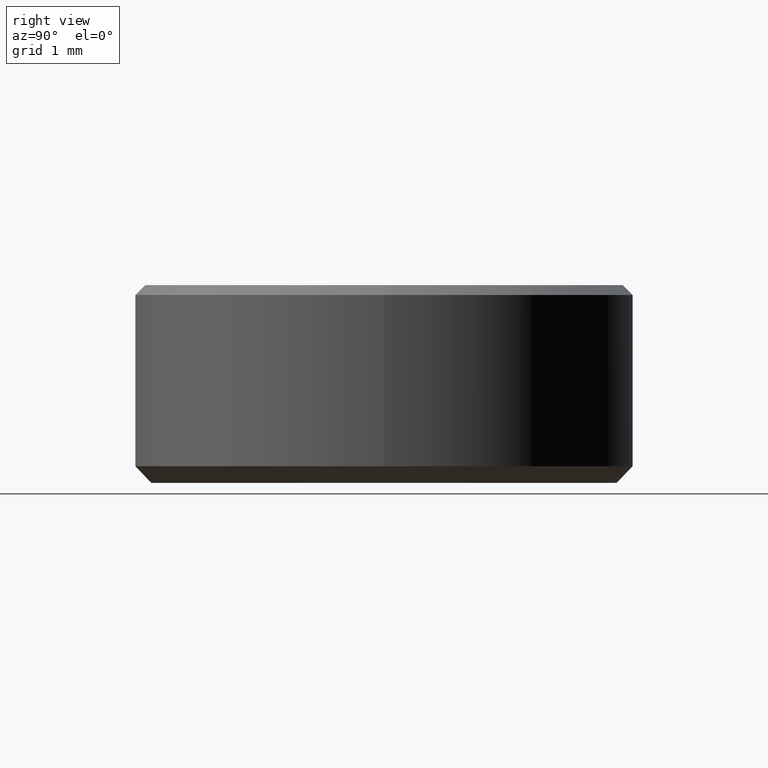
[diagram: clean part render]
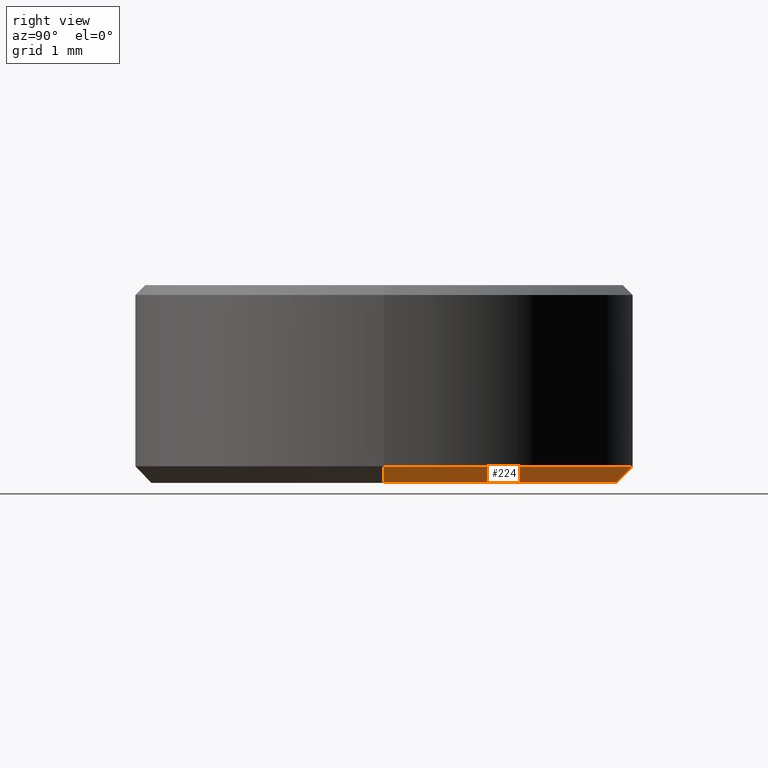
[diagram: same view with one face highlighted and labeled with its STEP entity id]
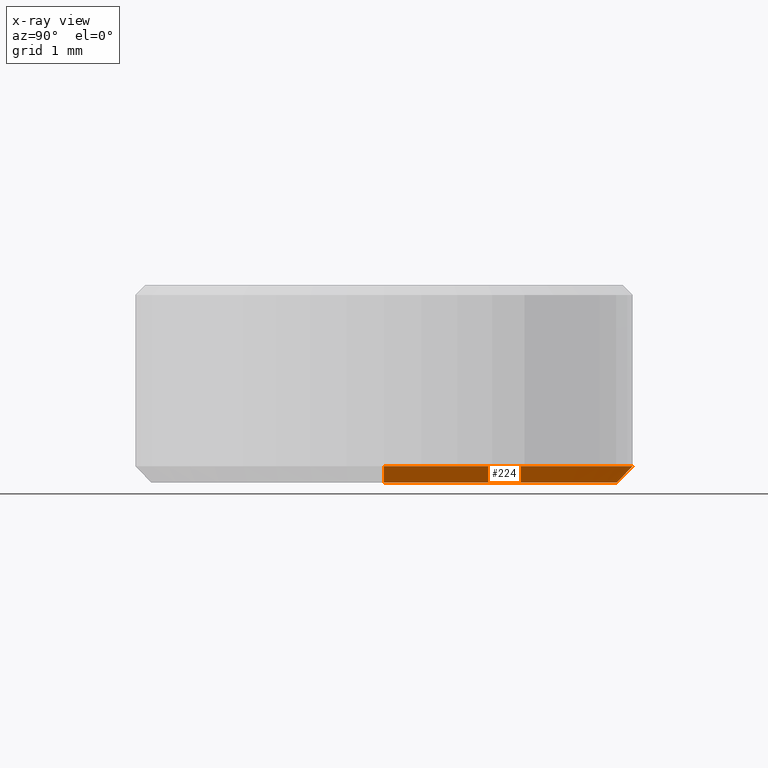
[diagram: x-ray of the same camera — body ghosted, the highlighted face saturated]
A machine part, right view. The second image highlights one B-rep face of the part: STEP entity #224.
The next image is the same camera in x-ray: the body ghosted, the highlighted face saturated — about 0% of this face is hidden behind the body in this view.
In plain terms, the highlighted conical surface has half-angle 45 deg.
Its self-contained STEP definition (entity closure, byte-faithful):
#17 = ORIENTED_EDGE ( 'NONE', *, *, #52, .F. ) ;
#18 = CARTESIAN_POINT ( 'NONE',  ( 3.000000000000000000, 0.000000000000000000, 0.2000000000000016209 ) ) ;
#29 = CARTESIAN_POINT ( 'NONE',  ( -3.000000000000000000, 3.673940397442059868E-16, 0.2000000000000016209 ) ) ;
#35 = CARTESIAN_POINT ( 'NONE',  ( -2.799999999999997158, 3.551475717527322846E-16, 1.836970198721029934E-16 ) ) ;
#36 = CARTESIAN_POINT ( 'NONE',  ( 3.000000000000000000, 0.000000000000000000, 0.2000000000000016209 ) ) ;
#44 = EDGE_CURVE ( 'NONE', #185, #105, #176, .T. ) ;
#46 = DIRECTION ( 'NONE',  ( 1.000000000000000000, 0.000000000000000000, 0.000000000000000000 ) ) ;
#47 = CARTESIAN_POINT ( 'NONE',  ( 0.000000000000000000, 0.000000000000000000, 0.2000000000000016209 ) ) ;
#52 = EDGE_CURVE ( 'NONE', #105, #227, #56, .T. ) ;
#56 = CIRCLE ( 'NONE', #248, 3.000000000000000000 ) ;
#65 = DIRECTION ( 'NONE',  ( -0.000000000000000000, -0.000000000000000000, 1.000000000000000000 ) ) ;
#69 = AXIS2_PLACEMENT_3D ( 'NONE', #47, #65, #46 ) ;
#105 = VERTEX_POINT ( 'NONE', #18 ) ;
#111 = VERTEX_POINT ( 'NONE', #35 ) ;
#113 = DIRECTION ( 'NONE',  ( 1.000000000000000000, 0.000000000000000000, 0.000000000000000000 ) ) ;
#116 = AXIS2_PLACEMENT_3D ( 'NONE', #150, #132, #113 ) ;
#129 = VECTOR ( 'NONE', #130, 1000.000000000000000 ) ;
#130 = DIRECTION ( 'NONE',  ( -0.7071067811865497932, 8.659560562354961208E-17, 0.7071067811865452413 ) ) ;
#132 = DIRECTION ( 'NONE',  ( 0.000000000000000000, 0.000000000000000000, -1.000000000000000000 ) ) ;
#139 = VECTOR ( 'NONE', #263, 1000.000000000000000 ) ;
#145 = EDGE_CURVE ( 'NONE', #111, #227, #257, .T. ) ;
#146 = CARTESIAN_POINT ( 'NONE',  ( 2.799999999999997158, 0.000000000000000000, 1.836970198721029934E-16 ) ) ;
#149 = ORIENTED_EDGE ( 'NONE', *, *, #145, .T. ) ;
#150 = CARTESIAN_POINT ( 'NONE',  ( 0.000000000000000000, 0.000000000000000000, 1.836970198721029934E-16 ) ) ;
#153 = ORIENTED_EDGE ( 'NONE', *, *, #247, .F. ) ;
#158 = DIRECTION ( 'NONE',  ( -0.000000000000000000, -0.000000000000000000, 1.000000000000000000 ) ) ;
#159 = CARTESIAN_POINT ( 'NONE',  ( 0.000000000000000000, 0.000000000000000000, 0.2000000000000016209 ) ) ;
#164 = CONICAL_SURFACE ( 'NONE', #69, 3.000000000000000000, 0.7853981633974514986 ) ;
#176 = LINE ( 'NONE', #36, #139 ) ;
#177 = EDGE_LOOP ( 'NONE', ( #153, #149, #17, #202 ) ) ;
#185 = VERTEX_POINT ( 'NONE', #146 ) ;
#202 = ORIENTED_EDGE ( 'NONE', *, *, #44, .F. ) ;
#205 = CARTESIAN_POINT ( 'NONE',  ( -3.000000000000000000, 3.673940397442059868E-16, 0.2000000000000016209 ) ) ;
#224 = ADVANCED_FACE ( 'NONE', ( #253 ), #164, .T. ) ;
#225 = CIRCLE ( 'NONE', #116, 2.799999999999997158 ) ;
#227 = VERTEX_POINT ( 'NONE', #205 ) ;
#244 = DIRECTION ( 'NONE',  ( 1.000000000000000000, 0.000000000000000000, 0.000000000000000000 ) ) ;
#247 = EDGE_CURVE ( 'NONE', #111, #185, #225, .T. ) ;
#248 = AXIS2_PLACEMENT_3D ( 'NONE', #159, #158, #244 ) ;
#253 = FACE_OUTER_BOUND ( 'NONE', #177, .T. ) ;
#257 = LINE ( 'NONE', #29, #129 ) ;
#263 = DIRECTION ( 'NONE',  ( 0.7071067811865497932, 0.000000000000000000, 0.7071067811865452413 ) ) ;